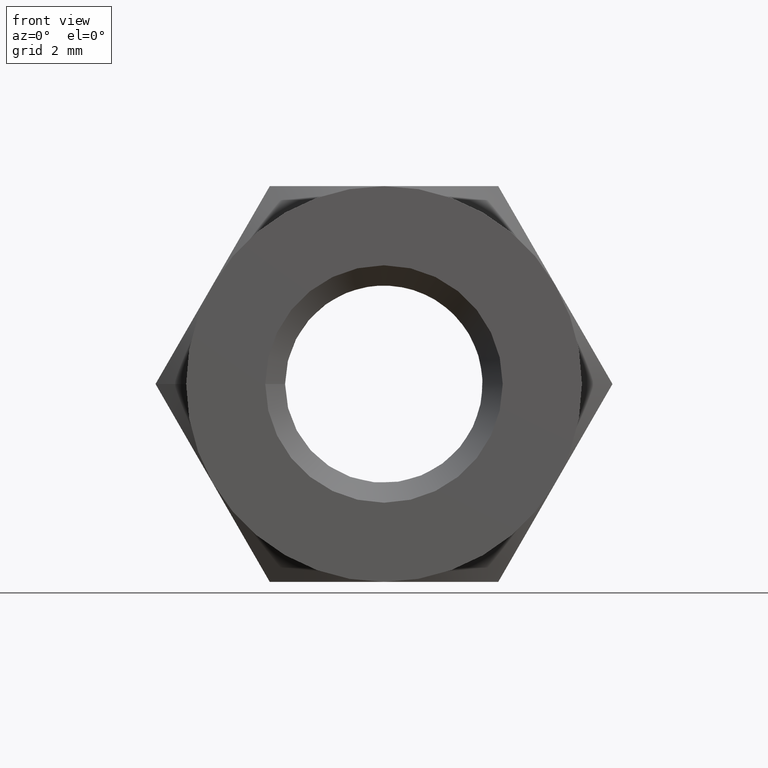
[diagram: clean part render]
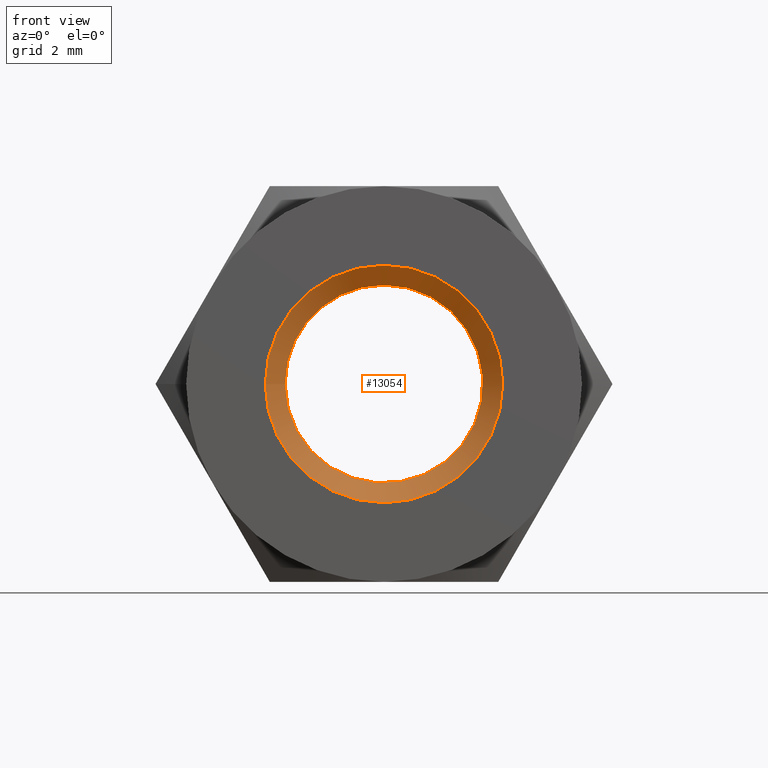
[diagram: same view with one face highlighted and labeled with its STEP entity id]
A machine part, front view. The second image highlights one B-rep face of the part: STEP entity #13054.
In plain terms, the highlighted conical surface has half-angle 45 deg.
Its self-contained STEP definition (entity closure, byte-faithful):
#1143 = CARTESIAN_POINT ( 'NONE',  ( -3.000000000000000444, 4.041334437186258607E-16, 0.000000000000000000 ) ) ;
#1980 = FACE_BOUND ( 'NONE', #8269, .T. ) ;
#2314 = AXIS2_PLACEMENT_3D ( 'NONE', #9277, #7887, #6665 ) ;
#3118 = VERTEX_POINT ( 'NONE', #1143 ) ;
#3681 = CARTESIAN_POINT ( 'NONE',  ( 0.000000000000000000, 0.4999999999999989453, 2.499999999999997335 ) ) ;
#5097 = VERTEX_POINT ( 'NONE', #3681 ) ;
#5762 = FACE_OUTER_BOUND ( 'NONE', #14120, .T. ) ;
#6029 = AXIS2_PLACEMENT_3D ( 'NONE', #14918, #16204, #12483 ) ;
#6170 = DIRECTION ( 'NONE',  ( 0.000000000000000000, -1.000000000000000000, 0.000000000000000000 ) ) ;
#6665 = DIRECTION ( 'NONE',  ( -1.000000000000000000, 7.347880794884105438E-17, 0.000000000000000000 ) ) ;
#7887 = DIRECTION ( 'NONE',  ( 7.347880794884106671E-17, 1.000000000000000000, -0.000000000000000000 ) ) ;
#8175 = AXIS2_PLACEMENT_3D ( 'NONE', #15105, #6170, #13808 ) ;
#8269 = EDGE_LOOP ( 'NONE', ( #9333 ) ) ;
#9265 = CONICAL_SURFACE ( 'NONE', #6029, 2.499999999999997335, 0.7853981633974526089 ) ;
#9277 = CARTESIAN_POINT ( 'NONE',  ( 0.000000000000000000, 1.836970198721026729E-16, 0.000000000000000000 ) ) ;
#9333 = ORIENTED_EDGE ( 'NONE', *, *, #15992, .F. ) ;
#11194 = EDGE_CURVE ( 'NONE', #3118, #3118, #13966, .T. ) ;
#12483 = DIRECTION ( 'NONE',  ( 0.000000000000000000, 0.000000000000000000, -1.000000000000000000 ) ) ;
#12632 = CIRCLE ( 'NONE', #8175, 2.499999999999997335 ) ;
#13054 = ADVANCED_FACE ( 'NONE', ( #5762, #1980 ), #9265, .F. ) ;
#13808 = DIRECTION ( 'NONE',  ( 0.000000000000000000, 0.000000000000000000, 1.000000000000000000 ) ) ;
#13966 = CIRCLE ( 'NONE', #2314, 3.000000000000000444 ) ;
#14120 = EDGE_LOOP ( 'NONE', ( #14893 ) ) ;
#14893 = ORIENTED_EDGE ( 'NONE', *, *, #11194, .F. ) ;
#14918 = CARTESIAN_POINT ( 'NONE',  ( 0.000000000000000000, 0.4999999999999989453, 0.000000000000000000 ) ) ;
#15105 = CARTESIAN_POINT ( 'NONE',  ( 0.000000000000000000, 0.4999999999999989453, 0.000000000000000000 ) ) ;
#15992 = EDGE_CURVE ( 'NONE', #5097, #5097, #12632, .T. ) ;
#16204 = DIRECTION ( 'NONE',  ( 0.000000000000000000, -1.000000000000000000, 0.000000000000000000 ) ) ;